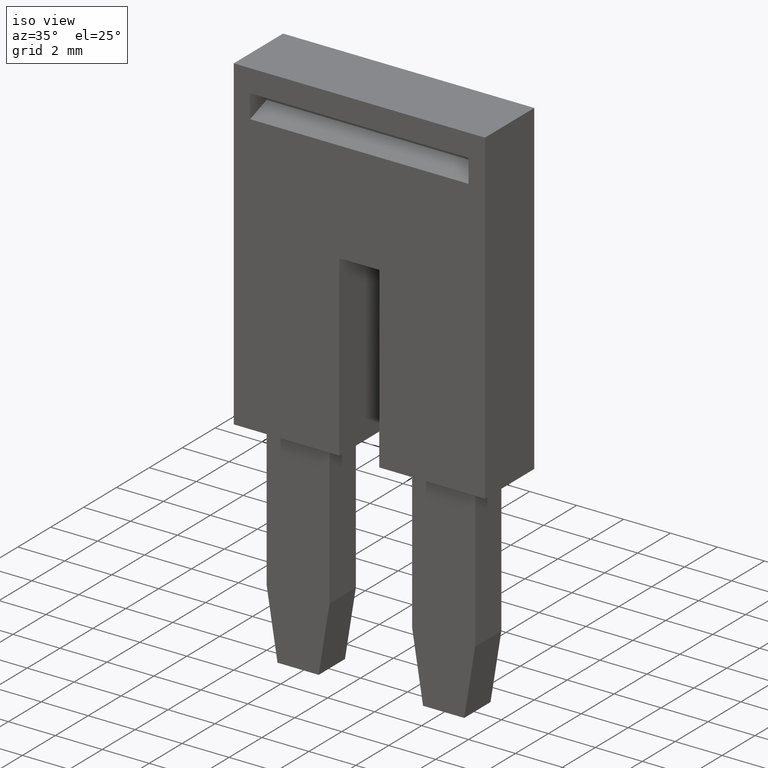
[diagram: clean part render]
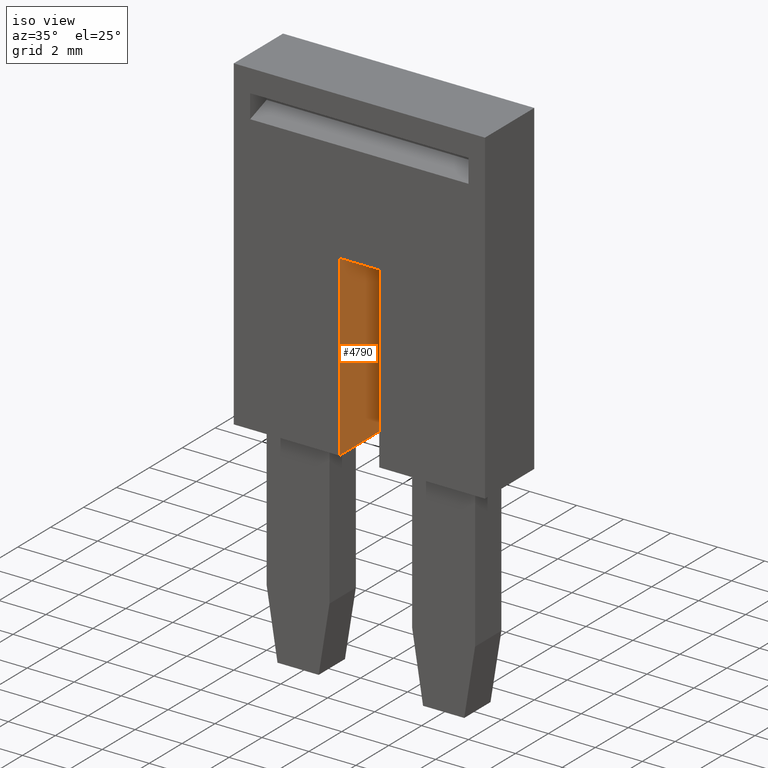
[diagram: same view with one face highlighted and labeled with its STEP entity id]
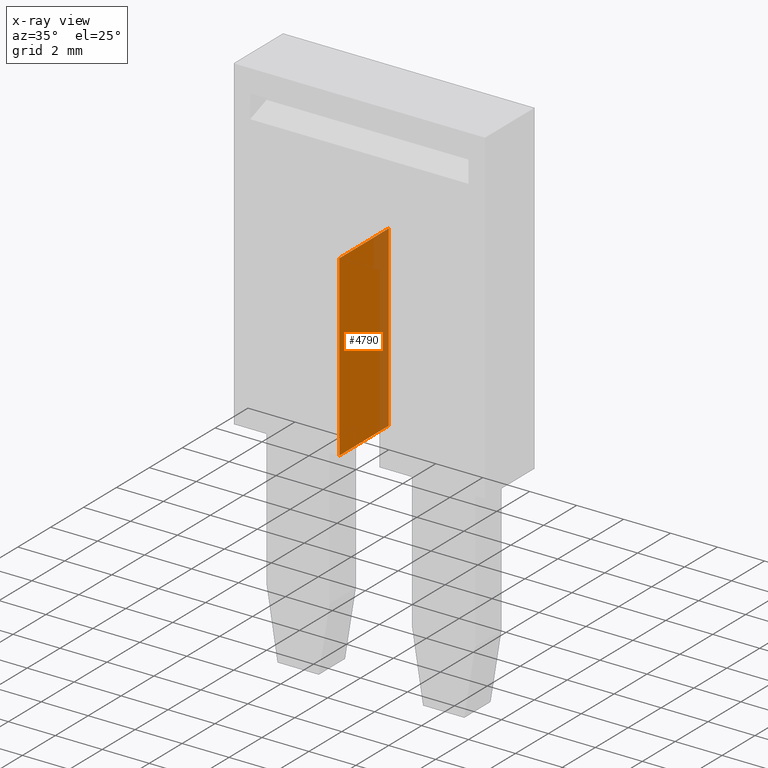
[diagram: x-ray of the same camera — body ghosted, the highlighted face saturated]
A machine part, iso view. The second image highlights one B-rep face of the part: STEP entity #4790.
The next image is the same camera in x-ray: the body ghosted, the highlighted face saturated — about 21% of this face is hidden behind the body in this view.
In plain terms, the highlighted planar face has unit normal (1, 0, -0).
Its self-contained STEP definition (entity closure, byte-faithful):
#700=CARTESIAN_POINT('',(2.60716722168537,-15.4750000000004,
54.5099999999988));
#710=VERTEX_POINT('',#700);
#740=CARTESIAN_POINT('',(2.60716722168538,-12.605124,54.5099999999988));
#750=DIRECTION('',(0.,1.,6.93889390390723E-17));
#760=VECTOR('',#750,1.);
#770=LINE('',#740,#760);
#780=CARTESIAN_POINT('',(2.60716722168537,-23.0750000000004,
54.5099999999988));
#790=VERTEX_POINT('',#780);
#800=EDGE_CURVE('',#790,#710,#770,.T.);
#2030=CARTESIAN_POINT('',(5.60716722168538,-23.0750000000004,
54.5099999999988));
#2040=VERTEX_POINT('',#2030);
#2070=CARTESIAN_POINT('',(5.60716722168538,-12.605124,54.5099999999988))
;
#2080=DIRECTION('',(0.,1.,6.93889390390723E-17));
#2090=VECTOR('',#2080,1.);
#2100=LINE('',#2070,#2090);
#2110=CARTESIAN_POINT('',(5.60716722168538,-15.4750000000004,
54.5099999999988));
#2120=VERTEX_POINT('',#2110);
#2130=EDGE_CURVE('',#2040,#2120,#2100,.T.);
#2620=CARTESIAN_POINT('',(2.60716722168539,-15.4750000000004,
54.5099999999988));
#2630=DIRECTION('',(-1.,0.,-1.20370621524202E-33));
#2640=VECTOR('',#2630,1.);
#2650=LINE('',#2620,#2640);
#2660=EDGE_CURVE('',#2120,#710,#2650,.T.);
#3730=CARTESIAN_POINT('',(2.60716722168538,-23.0750000000004,
54.5099999999988));
#3740=DIRECTION('',(1.,0.,1.20370621524202E-33));
#3750=VECTOR('',#3740,1.);
#3760=LINE('',#3730,#3750);
#3770=EDGE_CURVE('',#790,#2040,#3760,.T.);
#4680=CARTESIAN_POINT('',(2.60716722168539,-22.8750000000004,
54.5099999999988));
#4690=DIRECTION('',(-1.20370621524202E-33,-6.93889390390723E-17,1.));
#4700=DIRECTION('',(0.,-1.,-6.93889390390723E-17));
#4710=AXIS2_PLACEMENT_3D('',#4680,#4690,#4700);
#4720=PLANE('',#4710);
#4730=ORIENTED_EDGE('',*,*,#2660,.T.);
#4740=ORIENTED_EDGE('',*,*,#2130,.T.);
#4750=ORIENTED_EDGE('',*,*,#3770,.T.);
#4760=ORIENTED_EDGE('',*,*,#800,.F.);
#4770=EDGE_LOOP('',(#4760,#4750,#4740,#4730));
#4780=FACE_OUTER_BOUND('',#4770,.T.);
#4790=ADVANCED_FACE('',(#4780),#4720,.T.);